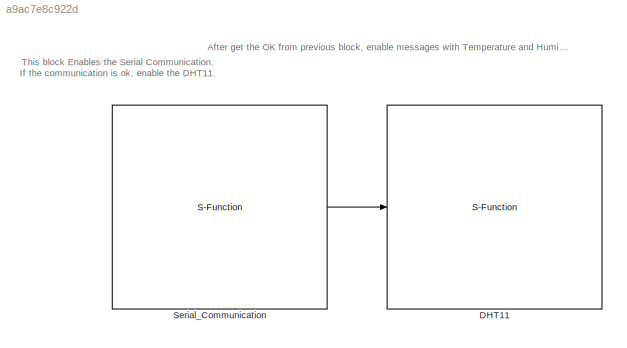
MODEL slx_a9ac7e8c922d
KIND model
CONFIG AbsTol = auto
CONFIG EnableMultiTasking = off
CONFIG FixedStep = 0.005
CONFIG MaxStep = auto
CONFIG MinStep = auto
CONFIG RelTol = 1e-3
CONFIG SampleTimeConstraint = Unconstrained
CONFIG SolverName = FixedStepDiscrete
CONFIG StartTime = 0.0
CONFIG StopTime = 10.0
BLOCK [S-Function] DHT11
  CopyFcn = set_param(gcbh,'LinkStatus','none')
  EnableBusSupport = off
  FunctionName = block_dht11
  OpenFcn = sfunctionwizard(gcbh)
  SFcnIsStateOwnerBlock = off
  SFunctionDeploymentMode = off
  SFunctionModules = block_dht11_wrapper.cpp
BLOCK [S-Function] Serial_Communication
  CopyFcn = set_param(gcbh,'LinkStatus','none')
  EnableBusSupport = off
  FunctionName = block_serial
  OpenFcn = sfunctionwizard(gcbh)
  SFcnIsStateOwnerBlock = off
  SFunctionDeploymentMode = off
  SFunctionModules = block_serial_wrapper.cpp
ANNOTATION (root): After get the OK from previous block, enable messages with Temperature and Humidity in Serial Port.
ANNOTATION (root): This block Enables the Serial Communication. If the communication is ok, enable the DHT11.
LINE Serial_Communication:1 -> DHT11:1
